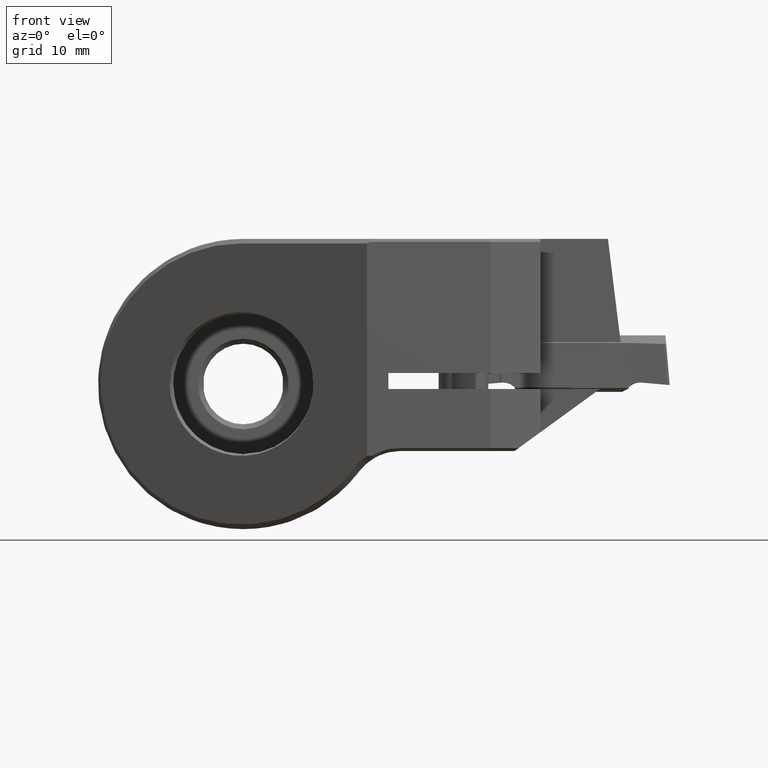
[diagram: clean part render]
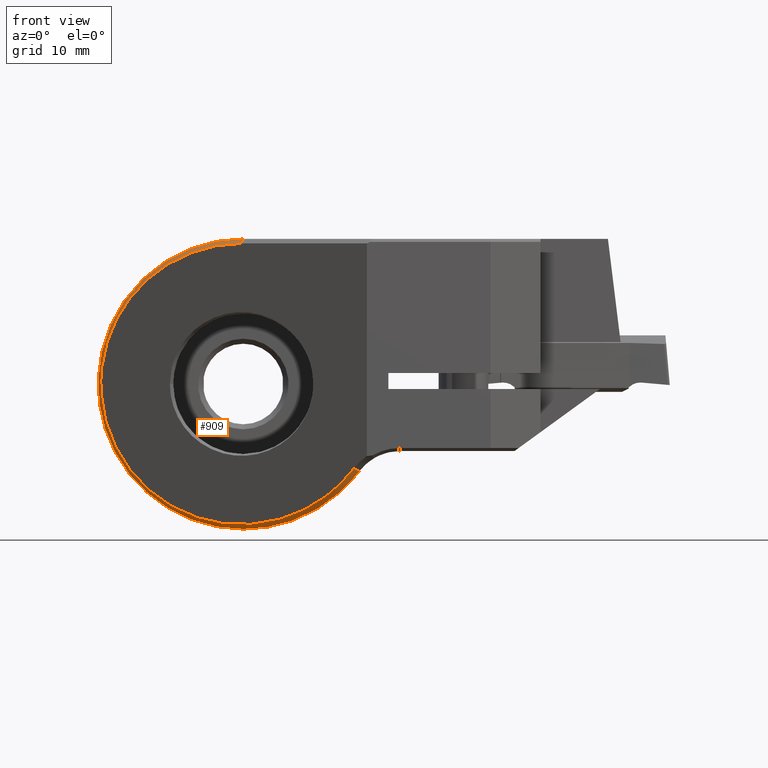
[diagram: same view with one face highlighted and labeled with its STEP entity id]
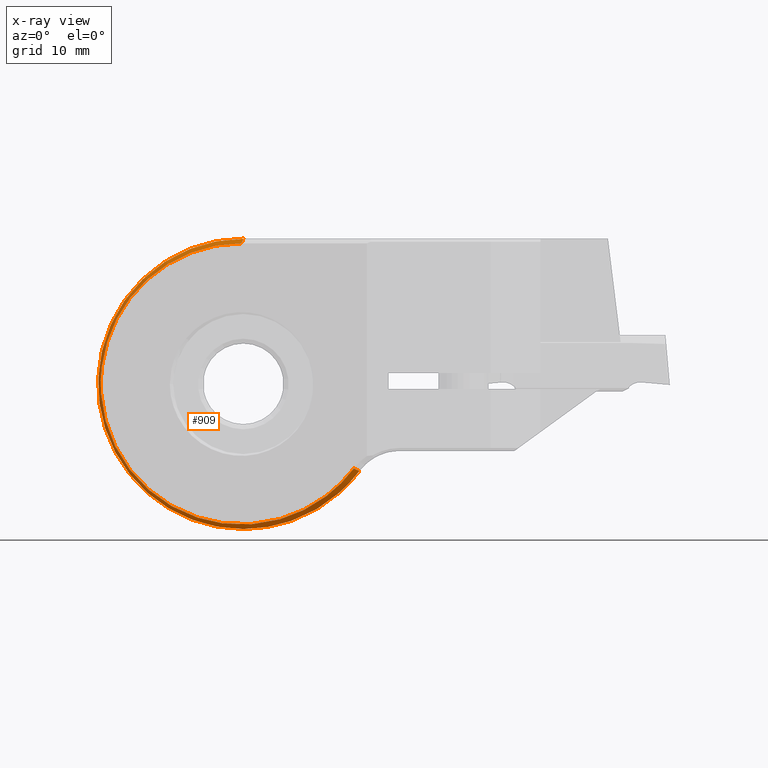
[diagram: x-ray of the same camera — body ghosted, the highlighted face saturated]
A machine part, front view. The second image highlights one B-rep face of the part: STEP entity #909.
The next image is the same camera in x-ray: the body ghosted, the highlighted face saturated — about 0% of this face is hidden behind the body in this view.
In plain terms, the highlighted face is a freeform B-spline surface patch.
Its self-contained STEP definition (entity closure, byte-faithful):
#829=EDGE_CURVE('NONE',#1865,#2063,#2369,.T.);
#851=EDGE_CURVE('NONE',#1645,#1453,#2394,.T.);
#865=EDGE_CURVE('NONE',#1453,#1865,#2408,.T.);
#909=ADVANCED_FACE('NONE',(#2457),#2458,.T.);
#1003=EDGE_CURVE('NONE',#1375,#1873,#2561,.T.);
#1375=VERTEX_POINT('',#2965);
#1453=VERTEX_POINT('NONE',#3051);
#1645=VERTEX_POINT('NONE',#3264);
#1663=EDGE_CURVE('NONE',#2063,#1375,#3284,.T.);
#1865=VERTEX_POINT('NONE',#3506);
#1873=VERTEX_POINT('NONE',#3514);
#1965=EDGE_CURVE('NONE',#1645,#1873,#3617,.F.);
#2063=VERTEX_POINT('NONE',#3730);
#2369=B_SPLINE_CURVE_WITH_KNOTS('',3,(#4072,#4073,#4074,#4075,#4076,#4077,#4078,#4079,#4080,#4081,#4082,#4083,#4084,#4085,#4086,#4087,#4088,#4089),.UNSPECIFIED.,.F.,.F.,(4,2,2,2,2,2,2,2,4),(-16.5312577497098,-16.2840481434787,-16.1113535424806,-16.0281642428642,-15.9152457417017,-10.2315228764494,-9.4597135466049,-2.70241459726312,-0.0),.UNSPECIFIED.);
#2394=B_SPLINE_CURVE_WITH_KNOTS('',3,(#4129,#4130,#4131,#4132,#4133,#4134,#4135,#4136,#4137,#4138,#4139,#4140,#4141,#4142,#4143,#4144,#4145,#4146,#4147,#4148,#4149,#4150,#4151,#4152,#4153,#4154,#4155,#4156,#4157,#4158,#4159,#4160,#4161,#4162,#4163,#4164,#4165,#4166),.UNSPECIFIED.,.F.,.F.,(4,2,2,2,2,2,2,2,2,2,2,2,2,2,2,2,2,2,4),(0.0,0.03125,0.0625,0.09375,0.125,0.1875,0.25,0.3125,0.375,0.4375,0.5,0.5625,0.625,0.6875,0.75,0.8125,0.875,0.9375,1.0),.UNSPECIFIED.);
#2408=B_SPLINE_CURVE_WITH_KNOTS('',1,(#4188,#4189),.UNSPECIFIED.,.F.,.F.,(2,2),(4.05231403988182E-015,1.0),.UNSPECIFIED.);
#2457=FACE_OUTER_BOUND('',#4285,.T.);
#2458=B_SPLINE_SURFACE_WITH_KNOTS('',1,3,((#4286,#4287,#4288,#4289,#4290,#4291,#4292,#4293,#4294,#4295,#4296,#4297,#4298,#4299,#4300,#4301,#4302,#4303,#4304,#4305,#4306,#4307,#4308,#4309),(#4310,#4311,#4312,#4313,#4314,#4315,#4316,#4317,#4318,#4319,#4320,#4321,#4322,#4323,#4324,#4325,#4326,#4327,#4328,#4329,#4330,#4331,#4332,#4333),(#4334,#4335,#4336,#4337,#4338,#4339,#4340,#4341,#4342,#4343,#4344,#4345,#4346,#4347,#4348,#4349,#4350,#4351,#4352,#4353,#4354,#4355,#4356,#4357)),.UNSPECIFIED.,.F.,.F.,.F.,(2,1,2),(4,3,2,2,2,2,2,2,2,3,4),(-0.142520126653966,0.0,1.0),(3.74440488366716,3.78509376238308,4.293704746332,4.80231573028093,5.31092671422985,5.81953769817878,6.32814868212771,6.83675966607663,7.34537065002556,7.85398163397448,7.8946705126904),.UNSPECIFIED.);
#2561=B_SPLINE_CURVE_WITH_KNOTS('',3,(#4564,#4565,#4566,#4567,#4568,#4569,#4570,#4571,#4572,#4573,#4574,#4575,#4576,#4577,#4578,#4579,#4580,#4581,#4582,#4583,#4584,#4585,#4586,#4587,#4588,#4589,#4590,#4591,#4592,#4593,#4594,#4595,#4596,#4597,#4598,#4599,#4600,#4601,#4602,#4603,#4604,#4605,#4606,#4607,#4608,#4609,#4610,#4611,#4612,#4613,#4614,#4615,#4616,#4617),.UNSPECIFIED.,.F.,.F.,(4,2,2,2,2,2,2,2,2,2,2,2,2,2,2,2,2,2,2,2,2,2,2,2,2,2,4),(-54.8007920544652,-51.1881576542774,-47.7250882176403,-45.3768788867525,-42.7743504557252,-38.8617073734681,-35.8031262073322,-33.9653929259779,-30.7206399494008,-27.8928284760143,-26.190683874534,-20.3607618961766,-19.6208966852557,-17.8921643861099,-12.5592507341891,-9.16005127654467,-6.1958030088485,-2.79899680891492,-0.676305647554137,-0.621248917297528,-0.562381916924579,-0.471929568490539,-0.397858719077565,-0.32531758216195,-0.211429435980957,-0.111157526055095,-0.0),.UNSPECIFIED.);
#2965=CARTESIAN_POINT('',(6.74494404495934E-015,-28.9509775527865,-14.5));
#3051=CARTESIAN_POINT('',(11.0540634255816,-34.5969602075435,-8.43208158678682));
#3264=CARTESIAN_POINT('',(-0.188712023467454,-29.3543679167349,14.0534693113114));
#3284=B_SPLINE_CURVE_WITH_KNOTS('',3,(#5899,#5900,#5901,#5902,#5903,#5904,#5905,#5906,#5907,#5908,#5909,#5910,#5911,#5912,#5913,#5914,#5915,#5916,#5917,#5918,#5919,#5920,#5921,#5922,#5923,#5924,#5925,#5926,#5927,#5928,#5929,#5930,#5931,#5932,#5933,#5934,#5935,#5936,#5937,#5938,#5939,#5940,#5941,#5942,#5943,#5944,#5945,#5946,#5947,#5948,#5949,#5950,#5951,#5952),.UNSPECIFIED.,.F.,.F.,(4,2,2,2,2,2,2,2,2,2,2,2,2,2,2,2,2,2,2,2,2,2,2,2,2,2,4),(-54.8007920544652,-51.1881576542774,-47.7250882176403,-45.3768788867525,-42.7743504557252,-38.8617073734681,-35.8031262073322,-33.9653929259779,-30.7206399494008,-27.8928284760143,-26.190683874534,-20.3607618961766,-19.6208966852557,-17.8921643861099,-12.5592507341891,-9.16005127654467,-6.1958030088485,-2.79899680891492,-0.676305647554137,-0.621248917297528,-0.562381916924579,-0.471929568490539,-0.397858719077565,-0.32531758216195,-0.211429435980957,-0.111157526055095,-0.0),.UNSPECIFIED.);
#3506=CARTESIAN_POINT('',(11.6,-34.1922659672342,-8.7));
#3514=CARTESIAN_POINT('',(0.0,-28.9496736764256,14.5));
#3617=B_SPLINE_CURVE_WITH_KNOTS('',1,(#6520,#6521),.UNSPECIFIED.,.F.,.F.,(2,2),(7.16093850883226E-015,0.999999999999993),.UNSPECIFIED.);
#3730=CARTESIAN_POINT('',(0.000488669164346957,-28.9511978984827,-14.4999999917656));
#4072=CARTESIAN_POINT('',(11.9430677180678,-34.3596601884355,-8.22272056448761));
#4073=CARTESIAN_POINT('',(11.8947036858328,-34.3340996596166,-8.29296676920429));
#4074=CARTESIAN_POINT('',(11.8456355585123,-34.3090523159571,-8.36290877997697));
#4075=CARTESIAN_POINT('',(11.7610920627329,-34.2673801047458,-8.48117257062569));
#4076=CARTESIAN_POINT('',(11.7259799518608,-34.2504933385859,-8.52965332596728));
#4077=CARTESIAN_POINT('',(11.6734471688633,-34.2258452308882,-8.601247853658));
#4078=CARTESIAN_POINT('',(11.6562894454562,-34.2178906005979,-8.62448558888405));
#4079=CARTESIAN_POINT('',(11.6156560735646,-34.1992767724238,-8.67917467242156));
#4080=CARTESIAN_POINT('',(11.5955561813075,-34.1902682486988,-8.70599747656782));
#4081=CARTESIAN_POINT('',(10.4740491750109,-33.6855525788399,-10.1919824284201));
#4082=CARTESIAN_POINT('',(9.12483495370816,-33.0713106011383,-11.4070066988285));
#4083=CARTESIAN_POINT('',(7.41450644106796,-32.2996631504415,-12.4632602106402));
#4084=CARTESIAN_POINT('',(7.20729602775257,-32.2062038544544,-12.5842047441199));
#4085=CARTESIAN_POINT('',(5.16163812433174,-31.2834452455987,-13.7113675832247));
#4086=CARTESIAN_POINT('',(3.1478135043816,-30.369831384894,-14.3025533941185));
#4087=CARTESIAN_POINT('',(0.279671102408739,-29.0770444961376,-14.5205720910502));
#4088=CARTESIAN_POINT('',(-0.543379877377662,-28.7064247674546,-14.5130692734401));
#4089=CARTESIAN_POINT('',(-1.36099809824959,-28.336278878168,-14.4359857362274));
#4129=CARTESIAN_POINT('',(-0.188712023467454,-29.3543679167349,14.0534693113114));
#4130=CARTESIAN_POINT('',(-0.784006930613462,-29.0767773426721,14.0540736396876));
#4131=CARTESIAN_POINT('',(-1.37622870789404,-28.8006197926,14.016608049636));
#4132=CARTESIAN_POINT('',(-2.55452600272433,-28.2511707404373,13.8655370326771));
#4133=CARTESIAN_POINT('',(-3.14194402041629,-27.9772532202493,13.7515823376073));
#4134=CARTESIAN_POINT('',(-4.30526379550033,-27.4347883002445,13.448930183262));
#4135=CARTESIAN_POINT('',(-4.87181449393265,-27.1706013708324,13.2627962713953));
#4136=CARTESIAN_POINT('',(-5.97469751257787,-26.656318573189,12.8209127782737));
#4137=CARTESIAN_POINT('',(-6.51211168245706,-26.4057182301733,12.5645601166398));
#4138=CARTESIAN_POINT('',(-8.07253552676785,-25.6780806416036,11.6946971099303));
#4139=CARTESIAN_POINT('',(-9.02880605099291,-25.2321643728895,10.9878471364477));
#4140=CARTESIAN_POINT('',(-10.7682103728342,-24.421066816987,9.32515176269514));
#4141=CARTESIAN_POINT('',(-11.5170968551259,-24.0718553152057,8.40143059869238));
#4142=CARTESIAN_POINT('',(-12.7695172514442,-23.4878420931729,6.37526150164334));
#4143=CARTESIAN_POINT('',(-13.2605342371371,-23.2588771124601,5.2922124046364));
#4144=CARTESIAN_POINT('',(-13.9700940690905,-22.9280039289011,2.99295015716286));
#4145=CARTESIAN_POINT('',(-14.1743683631302,-22.8327492612262,1.82147080382882));
#4146=CARTESIAN_POINT('',(-14.2815871224309,-22.7827523326664,-0.558113773545286));
#4147=CARTESIAN_POINT('',(-14.1830455288798,-22.828703032386,-1.74318039118069));
#4148=CARTESIAN_POINT('',(-13.6831313839241,-23.0618168265989,-4.09693639883407));
#4149=CARTESIAN_POINT('',(-13.2910800935349,-23.2446333456969,-5.21960629456839));
#4150=CARTESIAN_POINT('',(-12.2259541132395,-23.7413097472085,-7.35019878535139));
#4151=CARTESIAN_POINT('',(-11.562800298573,-24.0505434495222,-8.33727551782227));
#4152=CARTESIAN_POINT('',(-9.97996861643326,-24.7886299844743,-10.1496568941829));
#4153=CARTESIAN_POINT('',(-9.0908421072031,-25.203236484797,-10.9393061282492));
#4154=CARTESIAN_POINT('',(-7.12301517868073,-26.1208492514906,-12.2815332408217));
#4155=CARTESIAN_POINT('',(-6.06313091056078,-26.6150814024729,-12.820735118512));
#4156=CARTESIAN_POINT('',(-3.79808562353836,-27.6712893658794,-13.6329256599532));
#4157=CARTESIAN_POINT('',(-2.63697206461615,-28.2127255103924,-13.8896494285755));
#4158=CARTESIAN_POINT('',(-0.26461233783143,-29.3189750188906,-14.103717879334));
#4159=CARTESIAN_POINT('',(0.923685737475033,-29.8730875115769,-14.0585425047904));
#4160=CARTESIAN_POINT('',(3.29753363148446,-30.9800309638486,-13.6649306977473));
#4161=CARTESIAN_POINT('',(4.43550567941004,-31.5106760445626,-13.3242650232385));
#4162=CARTESIAN_POINT('',(6.61419039485509,-32.5266134120799,-12.3549274187279));
#4163=CARTESIAN_POINT('',(7.62862924243495,-32.9996540154363,-11.7383865745169));
#4164=CARTESIAN_POINT('',(9.51248644078702,-33.8781110538983,-10.2377479643815));
#4165=CARTESIAN_POINT('',(10.3403216354439,-34.2641369448571,-9.38575273682734));
#4166=CARTESIAN_POINT('',(11.0540634255816,-34.5969602075435,-8.43208158678682));
#4188=CARTESIAN_POINT('',(11.0540634255816,-34.5969602075435,-8.43208158678682));
#4189=CARTESIAN_POINT('',(11.6,-34.1922659672342,-8.7));
#4285=EDGE_LOOP('',(#7315,#7316,#7317,#7318,#7319,#7320));
#4286=CARTESIAN_POINT('',(12.0328999017223,-34.2943710302855,-8.26359620030673));
#4287=CARTESIAN_POINT('',(11.9145355843919,-34.2411103178067,-8.42179205559918));
#4288=CARTESIAN_POINT('',(11.7961712670615,-34.1878496053279,-8.57998791089163));
#4289=CARTESIAN_POINT('',(11.6778069497311,-34.1345888928491,-8.73818376618407));
#4290=CARTESIAN_POINT('',(10.1982529831011,-33.4688299868645,-10.7156319573397));
#4291=CARTESIAN_POINT('',(8.20424134603723,-32.5715791694426,-12.3016255040731));
#4292=CARTESIAN_POINT('',(3.69149763409522,-30.5409676578112,-14.3097752770495));
#4293=CARTESIAN_POINT('',(1.17783777999107,-29.412220287188,-14.7280289125659));
#4294=CARTESIAN_POINT('',(-3.74071409347821,-27.1966752153533,-14.2830003294052));
#4295=CARTESIAN_POINT('',(-6.13840710190042,-26.1177787978454,-13.4234133581047));
#4296=CARTESIAN_POINT('',(-10.2191312289294,-24.2815643090534,-10.64039099715));
#4297=CARTESIAN_POINT('',(-11.894739841049,-23.5275861631938,-8.72201796338515));
#4298=CARTESIAN_POINT('',(-14.1037001707432,-22.5336143003228,-4.30409730399672));
#4299=CARTESIAN_POINT('',(-14.6330334503384,-22.295428770707,-1.81258703532579));
#4300=CARTESIAN_POINT('',(-14.4110168231748,-22.3953301937968,3.12180656543766));
#4301=CARTESIAN_POINT('',(-13.6600708228162,-22.7332353996518,5.55571237744548));
#4302=CARTESIAN_POINT('',(-11.0632822683229,-23.901719379338,9.75740452021229));
#4303=CARTESIAN_POINT('',(-9.2221635680951,-24.7301725478483,11.517547046751));
#4304=CARTESIAN_POINT('',(-4.90799745953487,-26.6714295573965,13.9228521876513));
#4305=CARTESIAN_POINT('',(-2.44279567141679,-27.7807030833902,14.5664653516961));
#4306=CARTESIAN_POINT('',(0.0268952614857359,-28.8919966020405,14.5636396103068));
#4307=CARTESIAN_POINT('',(0.224470536117936,-28.9809000835326,14.5634135509956));
#4308=CARTESIAN_POINT('',(0.422045810750136,-29.0698035650246,14.5631874916845));
#4309=CARTESIAN_POINT('',(0.619621085382336,-29.1587070465166,14.5629614323734));
#4310=CARTESIAN_POINT('',(11.9535412810015,-34.3520481046705,-8.22748626790028));
#4311=CARTESIAN_POINT('',(11.8356941873344,-34.2987873921917,-8.38499084526685));
#4312=CARTESIAN_POINT('',(11.7178470936672,-34.2455266797129,-8.54249542263343));
#4313=CARTESIAN_POINT('',(11.6,-34.1922659672342,-8.7));
#4314=CARTESIAN_POINT('',(10.1269113291603,-33.5265070612495,-10.6688072170822));
#4315=CARTESIAN_POINT('',(8.14161304306755,-32.6292562431784,-12.2478703532191));
#4316=CARTESIAN_POINT('',(3.64858894101037,-30.5986447328454,-14.2472449923431));
#4317=CARTESIAN_POINT('',(1.14601840157585,-29.4696556604266,-14.6634971173857));
#4318=CARTESIAN_POINT('',(-3.75114580422213,-27.2543522906571,-14.2205870455887));
#4319=CARTESIAN_POINT('',(-6.13836147234609,-26.1754558718464,-13.3647562623444));
#4320=CARTESIAN_POINT('',(-10.2012538125384,-24.3392413838225,-10.5938950423924));
#4321=CARTESIAN_POINT('',(-11.8695404172902,-23.5852632378801,-8.68390483916662));
#4322=CARTESIAN_POINT('',(-14.0688481217074,-22.5912913744066,-4.28528943033222));
#4323=CARTESIAN_POINT('',(-14.5958683413803,-22.3531058450309,-1.80466646784124));
#4324=CARTESIAN_POINT('',(-14.3748218733399,-22.4530072682429,3.10816502277577));
#4325=CARTESIAN_POINT('',(-13.6271573274347,-22.790912473801,5.53143524672789));
#4326=CARTESIAN_POINT('',(-11.0417161147744,-23.9593964539589,9.71476700472704));
#4327=CARTESIAN_POINT('',(-9.20864266084386,-24.7878496227573,11.4672181306097));
#4328=CARTESIAN_POINT('',(-4.91332842515912,-26.7291066312574,13.86201266399));
#4329=CARTESIAN_POINT('',(-2.45889897616959,-27.8383801577752,14.5028133935775));
#4330=CARTESIAN_POINT('',(2.47863908465748E-014,-28.9496736764256,14.5));
#4331=CARTESIAN_POINT('',(0.196711918093592,-29.0385771579176,14.4997749285138));
#4332=CARTESIAN_POINT('',(0.393423836187159,-29.1274806394096,14.4995498570276));
#4333=CARTESIAN_POINT('',(0.590135754280726,-29.2163841209017,14.4993247855414));
#4334=CARTESIAN_POINT('',(11.3967173250876,-34.7567423449798,-7.97411901897739));
#4335=CARTESIAN_POINT('',(11.2824993585856,-34.7034816325011,-8.1267732082472));
#4336=CARTESIAN_POINT('',(11.1682813920836,-34.6502209200223,-8.27942739751701));
#4337=CARTESIAN_POINT('',(11.0540634255816,-34.5969602075435,-8.43208158678682));
#4338=CARTESIAN_POINT('',(9.62633884430668,-33.9312013015589,-10.3402589526594));
#4339=CARTESIAN_POINT('',(7.70217824575125,-33.0339504789324,-11.870694496615));
#4340=CARTESIAN_POINT('',(3.34751782851388,-31.0033389777101,-13.8084979453514));
#4341=CARTESIAN_POINT('',(0.922756051462505,-29.8726539918696,-14.2107063663862));
#4342=CARTESIAN_POINT('',(-3.82434045391008,-27.6590465374135,-13.7826609415234));
#4343=CARTESIAN_POINT('',(-6.13804131016688,-26.5801501094612,-12.9531856502669));
#4344=CARTESIAN_POINT('',(-10.075815975717,-24.7439356268264,-10.2676537188041));
#4345=CARTESIAN_POINT('',(-11.6927273288483,-23.9899574803035,-8.41648208903768));
#4346=CARTESIAN_POINT('',(-13.8243068779261,-22.9959856126019,-4.15332299088211));
#4347=CARTESIAN_POINT('',(-14.3350973904232,-22.7578000849116,-1.74909138753152));
#4348=CARTESIAN_POINT('',(-14.1208580951378,-22.8577015089809,3.01244841781505));
#4349=CARTESIAN_POINT('',(-13.3962180478104,-23.1956067124555,5.36109347614742));
#4350=CARTESIAN_POINT('',(-10.8903960587597,-24.364090695923,9.4155986241883));
#4351=CARTESIAN_POINT('',(-9.11377250061684,-25.1925438667436,11.1140826309229));
#4352=CARTESIAN_POINT('',(-4.95073342717115,-27.1338008678899,13.435128931217));
#4353=CARTESIAN_POINT('',(-2.57188866493052,-28.2430743980846,14.056196065815));
#4354=CARTESIAN_POINT('',(-0.188712023467452,-29.3543679167349,14.0534693113114));
#4355=CARTESIAN_POINT('',(0.00194210784959156,-29.443271398227,14.0532511709511));
#4356=CARTESIAN_POINT('',(0.192596239166635,-29.532174879719,14.0530330305908));
#4357=CARTESIAN_POINT('',(0.383250370483679,-29.621078361211,14.0528148902305));
#4564=CARTESIAN_POINT('',(1.66428063757767,-29.7011978984827,-14.4041719636841));
#4565=CARTESIAN_POINT('',(0.66334517712041,-29.2498170638549,-14.519821617861));
#4566=CARTESIAN_POINT('',(-0.346510516631402,-28.7955338107362,-14.5307618601647));
#4567=CARTESIAN_POINT('',(-2.30936047552149,-27.9069587824729,-14.3473974604495));
#4568=CARTESIAN_POINT('',(-3.26181560098679,-27.4742611498093,-14.161701613519));
#4569=CARTESIAN_POINT('',(-4.8219838727461,-26.7678078494751,-13.6905862774488));
#4570=CARTESIAN_POINT('',(-5.44129400385776,-26.4879677721582,-13.456721715872));
#4571=CARTESIAN_POINT('',(-6.71396102109019,-25.9138830952475,-12.8730133475909));
#4572=CARTESIAN_POINT('',(-7.36228461112809,-25.6220383227658,-12.5140246427098));
#4573=CARTESIAN_POINT('',(-8.91779048254991,-24.9196127285332,-11.4880493795057));
#4574=CARTESIAN_POINT('',(-9.78809039672404,-24.5238767392901,-10.758744027734));
#4575=CARTESIAN_POINT('',(-11.1825182416354,-23.8928396542029,-9.27362632651892));
#4576=CARTESIAN_POINT('',(-11.7377870042325,-23.6426770951381,-8.56162159093083));
#4577=CARTESIAN_POINT('',(-12.5203892822022,-23.2906012313509,-7.33405851580337));
#4578=CARTESIAN_POINT('',(-12.7890130084584,-23.1698068525776,-6.85526318648381));
#4579=CARTESIAN_POINT('',(-13.4573046207288,-22.8674661338283,-5.48607834386892));
#4580=CARTESIAN_POINT('',(-13.79749905169,-22.7118647221358,-4.5661822145052));
#4581=CARTESIAN_POINT('',(-14.2568680664748,-22.5033736007928,-2.78014464208588));
#4582=CARTESIAN_POINT('',(-14.3970040163547,-22.4406561831457,-1.92934072131395));
#4583=CARTESIAN_POINT('',(-14.4989124103526,-22.3961381594118,-0.549416532986993));
#4584=CARTESIAN_POINT('',(-14.5092959304311,-22.3920913646248,-0.0292457346970096));
#4585=CARTESIAN_POINT('',(-14.4314280837847,-22.4278209021862,2.27098638880581));
#4586=CARTESIAN_POINT('',(-14.0457066709021,-22.5981306212758,4.00729428523273));
#4587=CARTESIAN_POINT('',(-13.2768782361912,-22.9475194191963,5.8330331297213));
#4588=CARTESIAN_POINT('',(-13.1857146593256,-22.9889686425278,6.03625369988303));
#4589=CARTESIAN_POINT('',(-12.8666363042722,-23.1340051505498,6.70593249532671));
#4590=CARTESIAN_POINT('',(-12.6191455692845,-23.2464583402455,7.16047840780484));
#4591=CARTESIAN_POINT('',(-11.5165108211444,-23.7448814924281,8.95234890239826));
#4592=CARTESIAN_POINT('',(-10.4816850245262,-24.2090971316608,10.1373770225604));
#4593=CARTESIAN_POINT('',(-8.5423709323993,-25.0873710291415,11.7577935603966));
#4594=CARTESIAN_POINT('',(-7.73117261793676,-25.4557863875525,12.3050320035242));
#4595=CARTESIAN_POINT('',(-6.13787422016192,-26.1754578226093,13.1638675793664));
#4596=CARTESIAN_POINT('',(-5.36648022566201,-26.5230194339408,13.496164389469));
#4597=CARTESIAN_POINT('',(-3.66819138538204,-27.2900305358867,14.0608586768686));
#4598=CARTESIAN_POINT('',(-2.73739249835886,-27.7115708927632,14.2708086031643));
#4599=CARTESIAN_POINT('',(-1.20834366544481,-28.4039193336025,14.4617111559649));
#4600=CARTESIAN_POINT('',(-0.616516405370816,-28.671782344473,14.4989888665402));
#4601=CARTESIAN_POINT('',(-0.00889677790365475,-28.9456641324344,14.5000054077491));
#4602=CARTESIAN_POINT('',(0.00706119826606442,-28.9528474117956,14.5000079208232));
#4603=CARTESIAN_POINT('',(0.0416586551283126,-28.9685024725349,14.49995117768));
#4604=CARTESIAN_POINT('',(0.0595222111536258,-28.9766218836977,14.4998888178012));
#4605=CARTESIAN_POINT('',(0.1047990423963,-28.9972934282038,14.4996472173491));
#4606=CARTESIAN_POINT('',(0.132193138415904,-29.009886285736,14.4994232188613));
#4607=CARTESIAN_POINT('',(0.181959571262619,-29.0329198307162,14.4988755697261));
#4608=CARTESIAN_POINT('',(0.204342596575868,-29.0433371247603,14.4985773167014));
#4609=CARTESIAN_POINT('',(0.248601406019597,-29.0640499239441,14.4978852596855));
#4610=CARTESIAN_POINT('',(0.270477891889043,-29.0743433948433,14.4974935597725));
#4611=CARTESIAN_POINT('',(0.326643068806042,-29.1009131853284,14.4963609922968));
#4612=CARTESIAN_POINT('',(0.360898596544112,-29.1172551639646,14.4955483749439));
#4613=CARTESIAN_POINT('',(0.425209116737872,-29.1481928813202,14.4937953808949));
#4614=CARTESIAN_POINT('',(0.455276056562757,-29.1627635103929,14.4928819109699));
#4615=CARTESIAN_POINT('',(0.518580738732696,-29.1936658873044,14.4907619865313));
#4616=CARTESIAN_POINT('',(0.551807634827274,-29.2100167514832,14.4895345151539));
#4617=CARTESIAN_POINT('',(0.584978975970766,-29.2264714380542,14.4881951808247));
#5899=CARTESIAN_POINT('',(1.66428063757767,-29.7011978984827,-14.4041719636841));
#5900=CARTESIAN_POINT('',(0.66334517712041,-29.2498170638549,-14.519821617861));
#5901=CARTESIAN_POINT('',(-0.346510516631402,-28.7955338107362,-14.5307618601647));
#5902=CARTESIAN_POINT('',(-2.30936047552149,-27.9069587824729,-14.3473974604495));
#5903=CARTESIAN_POINT('',(-3.26181560098679,-27.4742611498093,-14.161701613519));
#5904=CARTESIAN_POINT('',(-4.8219838727461,-26.7678078494751,-13.6905862774488));
#5905=CARTESIAN_POINT('',(-5.44129400385776,-26.4879677721582,-13.456721715872));
#5906=CARTESIAN_POINT('',(-6.71396102109019,-25.9138830952475,-12.8730133475909));
#5907=CARTESIAN_POINT('',(-7.36228461112809,-25.6220383227658,-12.5140246427098));
#5908=CARTESIAN_POINT('',(-8.91779048254991,-24.9196127285332,-11.4880493795057));
#5909=CARTESIAN_POINT('',(-9.78809039672404,-24.5238767392901,-10.758744027734));
#5910=CARTESIAN_POINT('',(-11.1825182416354,-23.8928396542029,-9.27362632651892));
#5911=CARTESIAN_POINT('',(-11.7377870042325,-23.6426770951381,-8.56162159093083));
#5912=CARTESIAN_POINT('',(-12.5203892822022,-23.2906012313509,-7.33405851580337));
#5913=CARTESIAN_POINT('',(-12.7890130084584,-23.1698068525776,-6.85526318648381));
#5914=CARTESIAN_POINT('',(-13.4573046207288,-22.8674661338283,-5.48607834386892));
#5915=CARTESIAN_POINT('',(-13.79749905169,-22.7118647221358,-4.5661822145052));
#5916=CARTESIAN_POINT('',(-14.2568680664748,-22.5033736007928,-2.78014464208588));
#5917=CARTESIAN_POINT('',(-14.3970040163547,-22.4406561831457,-1.92934072131395));
#5918=CARTESIAN_POINT('',(-14.4989124103526,-22.3961381594118,-0.549416532986993));
#5919=CARTESIAN_POINT('',(-14.5092959304311,-22.3920913646248,-0.0292457346970096));
#5920=CARTESIAN_POINT('',(-14.4314280837847,-22.4278209021862,2.27098638880581));
#5921=CARTESIAN_POINT('',(-14.0457066709021,-22.5981306212758,4.00729428523273));
#5922=CARTESIAN_POINT('',(-13.2768782361912,-22.9475194191963,5.8330331297213));
#5923=CARTESIAN_POINT('',(-13.1857146593256,-22.9889686425278,6.03625369988303));
#5924=CARTESIAN_POINT('',(-12.8666363042722,-23.1340051505498,6.70593249532671));
#5925=CARTESIAN_POINT('',(-12.6191455692845,-23.2464583402455,7.16047840780484));
#5926=CARTESIAN_POINT('',(-11.5165108211444,-23.7448814924281,8.95234890239826));
#5927=CARTESIAN_POINT('',(-10.4816850245262,-24.2090971316608,10.1373770225604));
#5928=CARTESIAN_POINT('',(-8.5423709323993,-25.0873710291415,11.7577935603966));
#5929=CARTESIAN_POINT('',(-7.73117261793676,-25.4557863875525,12.3050320035242));
#5930=CARTESIAN_POINT('',(-6.13787422016192,-26.1754578226093,13.1638675793664));
#5931=CARTESIAN_POINT('',(-5.36648022566201,-26.5230194339408,13.496164389469));
#5932=CARTESIAN_POINT('',(-3.66819138538204,-27.2900305358867,14.0608586768686));
#5933=CARTESIAN_POINT('',(-2.73739249835886,-27.7115708927632,14.2708086031643));
#5934=CARTESIAN_POINT('',(-1.20834366544481,-28.4039193336025,14.4617111559649));
#5935=CARTESIAN_POINT('',(-0.616516405370816,-28.671782344473,14.4989888665402));
#5936=CARTESIAN_POINT('',(-0.00889677790365475,-28.9456641324344,14.5000054077491));
#5937=CARTESIAN_POINT('',(0.00706119826606442,-28.9528474117956,14.5000079208232));
#5938=CARTESIAN_POINT('',(0.0416586551283126,-28.9685024725349,14.49995117768));
#5939=CARTESIAN_POINT('',(0.0595222111536258,-28.9766218836977,14.4998888178012));
#5940=CARTESIAN_POINT('',(0.1047990423963,-28.9972934282038,14.4996472173491));
#5941=CARTESIAN_POINT('',(0.132193138415904,-29.009886285736,14.4994232188613));
#5942=CARTESIAN_POINT('',(0.181959571262619,-29.0329198307162,14.4988755697261));
#5943=CARTESIAN_POINT('',(0.204342596575868,-29.0433371247603,14.4985773167014));
#5944=CARTESIAN_POINT('',(0.248601406019597,-29.0640499239441,14.4978852596855));
#5945=CARTESIAN_POINT('',(0.270477891889043,-29.0743433948433,14.4974935597725));
#5946=CARTESIAN_POINT('',(0.326643068806042,-29.1009131853284,14.4963609922968));
#5947=CARTESIAN_POINT('',(0.360898596544112,-29.1172551639646,14.4955483749439));
#5948=CARTESIAN_POINT('',(0.425209116737872,-29.1481928813202,14.4937953808949));
#5949=CARTESIAN_POINT('',(0.455276056562757,-29.1627635103929,14.4928819109699));
#5950=CARTESIAN_POINT('',(0.518580738732696,-29.1936658873044,14.4907619865313));
#5951=CARTESIAN_POINT('',(0.551807634827274,-29.2100167514832,14.4895345151539));
#5952=CARTESIAN_POINT('',(0.584978975970766,-29.2264714380542,14.4881951808247));
#6520=CARTESIAN_POINT('',(2.34361141604467E-014,-28.9496736764256,14.5));
#6521=CARTESIAN_POINT('',(-0.188712023467451,-29.3543679167349,14.0534693113114));
#7315=ORIENTED_EDGE('',*,*,#1965,.T.);
#7316=ORIENTED_EDGE('',*,*,#1003,.F.);
#7317=ORIENTED_EDGE('',*,*,#1663,.F.);
#7318=ORIENTED_EDGE('',*,*,#829,.F.);
#7319=ORIENTED_EDGE('',*,*,#865,.F.);
#7320=ORIENTED_EDGE('',*,*,#851,.F.);